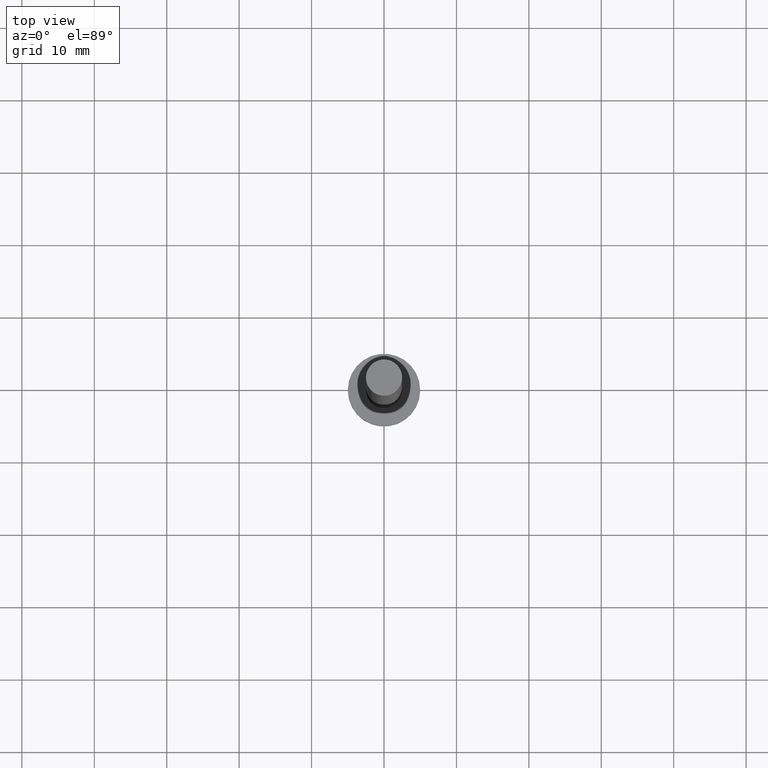
[diagram: clean part render]
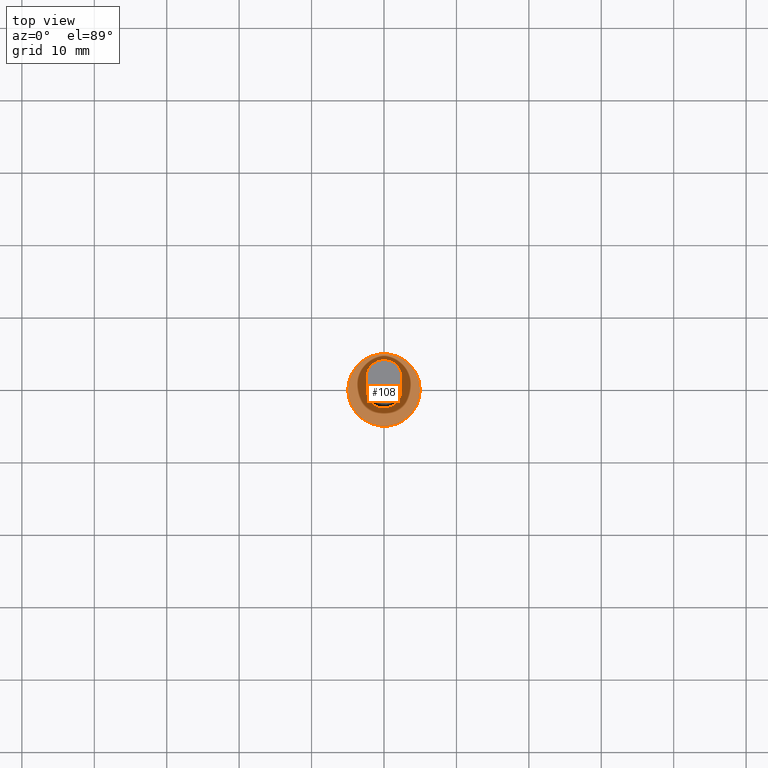
[diagram: same view with one face highlighted and labeled with its STEP entity id]
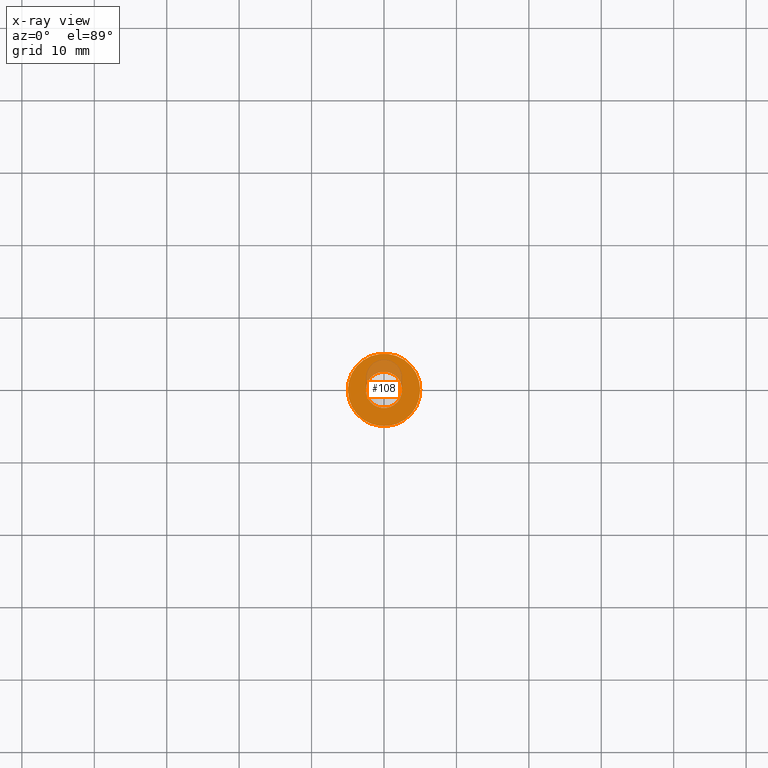
[diagram: x-ray of the same camera — body ghosted, the highlighted face saturated]
A machine part, top view. The second image highlights one B-rep face of the part: STEP entity #108.
The next image is the same camera in x-ray: the body ghosted, the highlighted face saturated — about 14% of this face is hidden behind the body in this view.
In plain terms, the highlighted planar face has unit normal (0, 0, 1).
Its self-contained STEP definition (entity closure, byte-faithful):
#2 = DIRECTION ( 'NONE',  ( 0.000000000000000000, 0.000000000000000000, 1.000000000000000000 ) ) ;
#15 = EDGE_LOOP ( 'NONE', ( #202, #206 ) ) ;
#19 = CARTESIAN_POINT ( 'NONE',  ( 0.000000000000000000, 0.000000000000000000, 3.000000000000000000 ) ) ;
#20 = FACE_BOUND ( 'NONE', #219, .T. ) ;
#47 = EDGE_CURVE ( 'NONE', #177, #72, #64, .T. ) ;
#53 = CARTESIAN_POINT ( 'NONE',  ( 5.000000000000000000, 6.123233995736766282E-16, 3.000000000000000000 ) ) ;
#59 = ORIENTED_EDGE ( 'NONE', *, *, #47, .F. ) ;
#64 = CIRCLE ( 'NONE', #186, 2.500000000000000000 ) ;
#72 = VERTEX_POINT ( 'NONE', #225 ) ;
#74 = DIRECTION ( 'NONE',  ( 0.000000000000000000, 0.000000000000000000, 1.000000000000000000 ) ) ;
#77 = EDGE_CURVE ( 'NONE', #157, #107, #84, .T. ) ;
#84 = CIRCLE ( 'NONE', #101, 5.000000000000000000 ) ;
#89 = EDGE_CURVE ( 'NONE', #72, #177, #218, .T. ) ;
#90 = CARTESIAN_POINT ( 'NONE',  ( -2.500000000000000000, 0.000000000000000000, 3.000000000000000000 ) ) ;
#101 = AXIS2_PLACEMENT_3D ( 'NONE', #195, #74, #118 ) ;
#103 = CIRCLE ( 'NONE', #252, 5.000000000000000000 ) ;
#107 = VERTEX_POINT ( 'NONE', #196 ) ;
#108 = ADVANCED_FACE ( 'NONE', ( #20, #222 ), #113, .T. ) ;
#113 = PLANE ( 'NONE',  #199 ) ;
#116 = ORIENTED_EDGE ( 'NONE', *, *, #89, .F. ) ;
#118 = DIRECTION ( 'NONE',  ( 1.000000000000000000, 0.000000000000000000, 0.000000000000000000 ) ) ;
#121 = DIRECTION ( 'NONE',  ( 0.000000000000000000, 0.000000000000000000, 1.000000000000000000 ) ) ;
#130 = DIRECTION ( 'NONE',  ( 1.000000000000000000, 0.000000000000000000, 0.000000000000000000 ) ) ;
#141 = CARTESIAN_POINT ( 'NONE',  ( 0.000000000000000000, 0.000000000000000000, 3.000000000000000000 ) ) ;
#143 = DIRECTION ( 'NONE',  ( 0.000000000000000000, 0.000000000000000000, 1.000000000000000000 ) ) ;
#157 = VERTEX_POINT ( 'NONE', #53 ) ;
#164 = EDGE_CURVE ( 'NONE', #107, #157, #103, .T. ) ;
#177 = VERTEX_POINT ( 'NONE', #90 ) ;
#183 = DIRECTION ( 'NONE',  ( 1.000000000000000000, 0.000000000000000000, -0.000000000000000000 ) ) ;
#186 = AXIS2_PLACEMENT_3D ( 'NONE', #141, #143, #207 ) ;
#189 = CARTESIAN_POINT ( 'NONE',  ( 0.000000000000000000, 0.000000000000000000, 3.000000000000000000 ) ) ;
#191 = CARTESIAN_POINT ( 'NONE',  ( 0.000000000000000000, 0.000000000000000000, 3.000000000000000000 ) ) ;
#195 = CARTESIAN_POINT ( 'NONE',  ( 0.000000000000000000, 0.000000000000000000, 3.000000000000000000 ) ) ;
#196 = CARTESIAN_POINT ( 'NONE',  ( -5.000000000000000000, 0.000000000000000000, 3.000000000000000000 ) ) ;
#199 = AXIS2_PLACEMENT_3D ( 'NONE', #189, #230, #183 ) ;
#202 = ORIENTED_EDGE ( 'NONE', *, *, #164, .T. ) ;
#206 = ORIENTED_EDGE ( 'NONE', *, *, #77, .T. ) ;
#207 = DIRECTION ( 'NONE',  ( 1.000000000000000000, 0.000000000000000000, 0.000000000000000000 ) ) ;
#218 = CIRCLE ( 'NONE', #223, 2.500000000000000000 ) ;
#219 = EDGE_LOOP ( 'NONE', ( #59, #116 ) ) ;
#222 = FACE_OUTER_BOUND ( 'NONE', #15, .T. ) ;
#223 = AXIS2_PLACEMENT_3D ( 'NONE', #191, #121, #227 ) ;
#225 = CARTESIAN_POINT ( 'NONE',  ( 2.500000000000000000, 3.061616997868382648E-16, 3.000000000000000000 ) ) ;
#227 = DIRECTION ( 'NONE',  ( 1.000000000000000000, 0.000000000000000000, 0.000000000000000000 ) ) ;
#230 = DIRECTION ( 'NONE',  ( 0.000000000000000000, 0.000000000000000000, 1.000000000000000000 ) ) ;
#252 = AXIS2_PLACEMENT_3D ( 'NONE', #19, #2, #130 ) ;